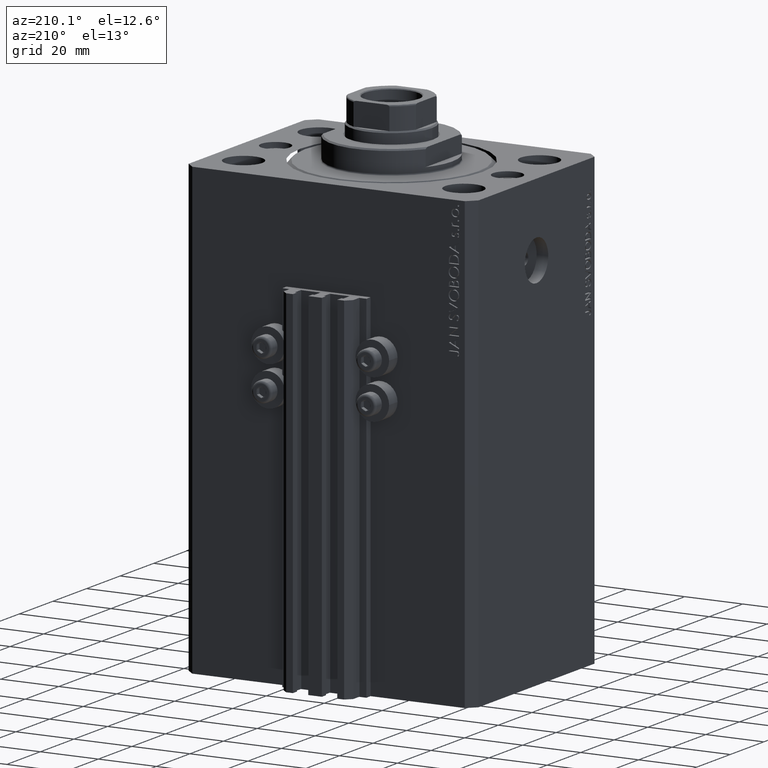
[diagram: clean part render]
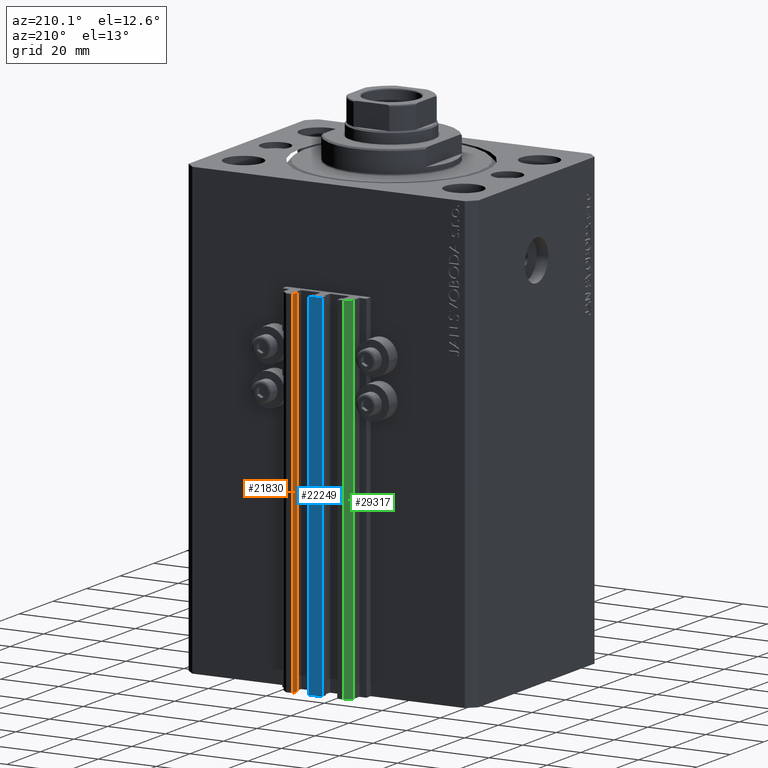
[diagram: same view with three faces highlighted in distinct colors, each labeled with its STEP entity id]
A machine part, auxiliary view with three faces highlighted in distinct colors.
Their STEP definitions:

[orange] entity #21830 — the highlighted planar face has unit normal (-1, 0, 0).
#786 = VECTOR ( 'NONE', #11105, 1000.000000000000000 ) ;
#1393 = DIRECTION ( 'NONE',  ( 0.000000000000000000, 0.000000000000000000, 1.000000000000000000 ) ) ;
#1869 = EDGE_CURVE ( 'NONE', #34621, #14976, #28916, .T. ) ;
#2129 = DIRECTION ( 'NONE',  ( 0.000000000000000000, -1.000000000000000000, 0.000000000000000000 ) ) ;
#7865 = DIRECTION ( 'NONE',  ( 0.000000000000000000, -1.000000000000000000, 0.000000000000000000 ) ) ;
#8094 = CARTESIAN_POINT ( 'NONE',  ( 7.649999999999998579, 45.50000000000002842, -155.0000000000000000 ) ) ;
#8797 = DIRECTION ( 'NONE',  ( -1.000000000000000000, 0.000000000000000000, 0.000000000000000000 ) ) ;
#10101 = EDGE_CURVE ( 'NONE', #23930, #34621, #11438, .T. ) ;
#10156 = EDGE_CURVE ( 'NONE', #23930, #17848, #18521, .T. ) ;
#11105 = DIRECTION ( 'NONE',  ( 0.000000000000000000, 0.000000000000000000, 1.000000000000000000 ) ) ;
#11438 = LINE ( 'NONE', #40585, #23671 ) ;
#14976 = VERTEX_POINT ( 'NONE', #40447 ) ;
#17848 = VERTEX_POINT ( 'NONE', #33646 ) ;
#18521 = LINE ( 'NONE', #21865, #786 ) ;
#21830 = ADVANCED_FACE ( 'NONE', ( #38171 ), #40820, .T. ) ;
#21865 = CARTESIAN_POINT ( 'NONE',  ( 7.649999999999998579, 45.50000000000002842, -155.0000000000000000 ) ) ;
#22307 = ORIENTED_EDGE ( 'NONE', *, *, #41799, .F. ) ;
#23671 = VECTOR ( 'NONE', #7865, 1000.000000000000000 ) ;
#23930 = VERTEX_POINT ( 'NONE', #40538 ) ;
#25092 = ORIENTED_EDGE ( 'NONE', *, *, #1869, .T. ) ;
#25595 = CARTESIAN_POINT ( 'NONE',  ( 7.649999999999998579, 43.10000000000002984, -155.0000000000000000 ) ) ;
#25816 = CARTESIAN_POINT ( 'NONE',  ( 7.649999999999998579, 43.10000000000002984, -155.0000000000000000 ) ) ;
#27598 = VECTOR ( 'NONE', #2129, 1000.000000000000000 ) ;
#28916 = LINE ( 'NONE', #25816, #43063 ) ;
#32194 = CARTESIAN_POINT ( 'NONE',  ( 7.649999999999998579, 45.50000000000002842, -33.00000000000000000 ) ) ;
#32999 = AXIS2_PLACEMENT_3D ( 'NONE', #8094, #8797, #1393 ) ;
#33006 = EDGE_LOOP ( 'NONE', ( #22307, #34299, #38435, #25092 ) ) ;
#33646 = CARTESIAN_POINT ( 'NONE',  ( 7.649999999999998579, 45.50000000000002842, -33.00000000000000000 ) ) ;
#34299 = ORIENTED_EDGE ( 'NONE', *, *, #10156, .F. ) ;
#34621 = VERTEX_POINT ( 'NONE', #25595 ) ;
#38171 = FACE_OUTER_BOUND ( 'NONE', #33006, .T. ) ;
#38435 = ORIENTED_EDGE ( 'NONE', *, *, #10101, .T. ) ;
#40447 = CARTESIAN_POINT ( 'NONE',  ( 7.649999999999998579, 43.10000000000002984, -33.00000000000000000 ) ) ;
#40538 = CARTESIAN_POINT ( 'NONE',  ( 7.649999999999998579, 45.50000000000002842, -155.0000000000000000 ) ) ;
#40585 = CARTESIAN_POINT ( 'NONE',  ( 7.649999999999998579, 45.50000000000002842, -155.0000000000000000 ) ) ;
#40820 = PLANE ( 'NONE',  #32999 ) ;
#41799 = EDGE_CURVE ( 'NONE', #17848, #14976, #43171, .T. ) ;
#43063 = VECTOR ( 'NONE', #46589, 1000.000000000000000 ) ;
#43171 = LINE ( 'NONE', #32194, #27598 ) ;
#46589 = DIRECTION ( 'NONE',  ( 0.000000000000000000, 0.000000000000000000, 1.000000000000000000 ) ) ;

[blue] entity #22249 — the highlighted planar face has unit normal (0, -1, 0).
#2187 = CARTESIAN_POINT ( 'NONE',  ( 2.349999999999999645, 45.50000000000000711, -155.0000000000000000 ) ) ;
#2538 = VECTOR ( 'NONE', #37298, 1000.000000000000000 ) ;
#4981 = CARTESIAN_POINT ( 'NONE',  ( -2.350000000000003642, 45.50000000000000711, -155.0000000000000000 ) ) ;
#5646 = EDGE_LOOP ( 'NONE', ( #39406, #8414, #34196, #28017 ) ) ;
#6945 = CARTESIAN_POINT ( 'NONE',  ( -2.350000000000003642, 45.50000000000000711, -33.00000000000000000 ) ) ;
#8414 = ORIENTED_EDGE ( 'NONE', *, *, #45674, .F. ) ;
#8685 = DIRECTION ( 'NONE',  ( 0.000000000000000000, -1.000000000000000000, 0.000000000000000000 ) ) ;
#11982 = CARTESIAN_POINT ( 'NONE',  ( -2.350000000000003642, 45.50000000000000711, -33.00000000000000000 ) ) ;
#12562 = LINE ( 'NONE', #30939, #27940 ) ;
#14939 = VERTEX_POINT ( 'NONE', #43536 ) ;
#16083 = CARTESIAN_POINT ( 'NONE',  ( -2.350000000000003642, 45.50000000000000711, -155.0000000000000000 ) ) ;
#16850 = DIRECTION ( 'NONE',  ( 0.000000000000000000, 0.000000000000000000, 1.000000000000000000 ) ) ;
#17803 = VERTEX_POINT ( 'NONE', #4981 ) ;
#19208 = VERTEX_POINT ( 'NONE', #2187 ) ;
#20380 = DIRECTION ( 'NONE',  ( 0.000000000000000000, -0.000000000000000000, -1.000000000000000000 ) ) ;
#22249 = ADVANCED_FACE ( 'NONE', ( #31111 ), #45909, .F. ) ;
#22253 = CARTESIAN_POINT ( 'NONE',  ( 2.349999999999999645, 45.50000000000000711, -155.0000000000000000 ) ) ;
#24256 = DIRECTION ( 'NONE',  ( 1.000000000000000000, 0.000000000000000000, 0.000000000000000000 ) ) ;
#25270 = EDGE_CURVE ( 'NONE', #17803, #42284, #12562, .T. ) ;
#26078 = LINE ( 'NONE', #22253, #2538 ) ;
#27834 = CARTESIAN_POINT ( 'NONE',  ( -2.350000000000003642, 45.50000000000000711, -155.0000000000000000 ) ) ;
#27940 = VECTOR ( 'NONE', #16850, 1000.000000000000000 ) ;
#28017 = ORIENTED_EDGE ( 'NONE', *, *, #25270, .T. ) ;
#29701 = VECTOR ( 'NONE', #41354, 1000.000000000000000 ) ;
#30850 = EDGE_CURVE ( 'NONE', #17803, #19208, #43318, .T. ) ;
#30939 = CARTESIAN_POINT ( 'NONE',  ( -2.350000000000003642, 45.50000000000000711, -155.0000000000000000 ) ) ;
#31111 = FACE_OUTER_BOUND ( 'NONE', #5646, .T. ) ;
#32234 = AXIS2_PLACEMENT_3D ( 'NONE', #16083, #8685, #20380 ) ;
#34196 = ORIENTED_EDGE ( 'NONE', *, *, #30850, .F. ) ;
#36269 = EDGE_CURVE ( 'NONE', #42284, #14939, #40661, .T. ) ;
#37298 = DIRECTION ( 'NONE',  ( 0.000000000000000000, 0.000000000000000000, 1.000000000000000000 ) ) ;
#39406 = ORIENTED_EDGE ( 'NONE', *, *, #36269, .T. ) ;
#39559 = VECTOR ( 'NONE', #24256, 1000.000000000000000 ) ;
#40661 = LINE ( 'NONE', #11982, #29701 ) ;
#41354 = DIRECTION ( 'NONE',  ( 1.000000000000000000, 0.000000000000000000, 0.000000000000000000 ) ) ;
#42284 = VERTEX_POINT ( 'NONE', #6945 ) ;
#43318 = LINE ( 'NONE', #27834, #39559 ) ;
#43536 = CARTESIAN_POINT ( 'NONE',  ( 2.349999999999999645, 45.50000000000000711, -33.00000000000000000 ) ) ;
#45674 = EDGE_CURVE ( 'NONE', #19208, #14939, #26078, .T. ) ;
#45909 = PLANE ( 'NONE',  #32234 ) ;

[green] entity #29317 — the highlighted planar face has unit normal (-0.7071, 0.7071, 0).
#330 = DIRECTION ( 'NONE',  ( 0.000000000000000000, 0.000000000000000000, 1.000000000000000000 ) ) ;
#2307 = VECTOR ( 'NONE', #2796, 1000.000000000000000 ) ;
#2796 = DIRECTION ( 'NONE',  ( 0.000000000000000000, 0.000000000000000000, 1.000000000000000000 ) ) ;
#5738 = DIRECTION ( 'NONE',  ( -0.7071067811865490160, 0.7071067811865461294, 0.000000000000000000 ) ) ;
#6561 = EDGE_CURVE ( 'NONE', #12744, #24720, #45510, .T. ) ;
#7037 = LINE ( 'NONE', #21613, #31509 ) ;
#9344 = ORIENTED_EDGE ( 'NONE', *, *, #37536, .T. ) ;
#10806 = ORIENTED_EDGE ( 'NONE', *, *, #33861, .F. ) ;
#12744 = VERTEX_POINT ( 'NONE', #42717 ) ;
#13115 = EDGE_LOOP ( 'NONE', ( #36241, #10806, #14993, #9344 ) ) ;
#14035 = VERTEX_POINT ( 'NONE', #26577 ) ;
#14415 = CARTESIAN_POINT ( 'NONE',  ( -12.00000000000000000, 43.49999999999998579, -155.0000000000000000 ) ) ;
#14993 = ORIENTED_EDGE ( 'NONE', *, *, #46561, .T. ) ;
#16398 = VERTEX_POINT ( 'NONE', #34209 ) ;
#16658 = LINE ( 'NONE', #31219, #2307 ) ;
#19737 = DIRECTION ( 'NONE',  ( -0.7071067811865460184, -0.7071067811865490160, 0.000000000000000000 ) ) ;
#21613 = CARTESIAN_POINT ( 'NONE',  ( -10.00000000000000000, 45.49999999999999289, -155.0000000000000000 ) ) ;
#23515 = AXIS2_PLACEMENT_3D ( 'NONE', #38460, #5738, #27703 ) ;
#23900 = PLANE ( 'NONE',  #23515 ) ;
#24720 = VERTEX_POINT ( 'NONE', #37823 ) ;
#26577 = CARTESIAN_POINT ( 'NONE',  ( -10.00000000000000000, 45.49999999999999289, -155.0000000000000000 ) ) ;
#27703 = DIRECTION ( 'NONE',  ( -0.7071067811865460184, -0.7071067811865489050, 0.000000000000000000 ) ) ;
#29317 = ADVANCED_FACE ( 'NONE', ( #30570 ), #23900, .T. ) ;
#30570 = FACE_OUTER_BOUND ( 'NONE', #13115, .T. ) ;
#31219 = CARTESIAN_POINT ( 'NONE',  ( -10.00000000000000000, 45.49999999999999289, -155.0000000000000000 ) ) ;
#31509 = VECTOR ( 'NONE', #32112, 1000.000000000000227 ) ;
#32112 = DIRECTION ( 'NONE',  ( -0.7071067811865460184, -0.7071067811865490160, 0.000000000000000000 ) ) ;
#33574 = VECTOR ( 'NONE', #330, 1000.000000000000000 ) ;
#33861 = EDGE_CURVE ( 'NONE', #14035, #12744, #16658, .T. ) ;
#34209 = CARTESIAN_POINT ( 'NONE',  ( -12.00000000000000000, 43.49999999999998579, -155.0000000000000000 ) ) ;
#36241 = ORIENTED_EDGE ( 'NONE', *, *, #6561, .F. ) ;
#37536 = EDGE_CURVE ( 'NONE', #16398, #24720, #43539, .T. ) ;
#37823 = CARTESIAN_POINT ( 'NONE',  ( -12.00000000000000000, 43.49999999999998579, -33.00000000000000000 ) ) ;
#38460 = CARTESIAN_POINT ( 'NONE',  ( -10.00000000000000000, 45.49999999999999289, -155.0000000000000000 ) ) ;
#41931 = CARTESIAN_POINT ( 'NONE',  ( -10.00000000000000000, 45.49999999999999289, -33.00000000000000000 ) ) ;
#42717 = CARTESIAN_POINT ( 'NONE',  ( -10.00000000000000000, 45.49999999999999289, -33.00000000000000000 ) ) ;
#43539 = LINE ( 'NONE', #14415, #33574 ) ;
#44088 = VECTOR ( 'NONE', #19737, 1000.000000000000227 ) ;
#45510 = LINE ( 'NONE', #41931, #44088 ) ;
#46561 = EDGE_CURVE ( 'NONE', #14035, #16398, #7037, .T. ) ;